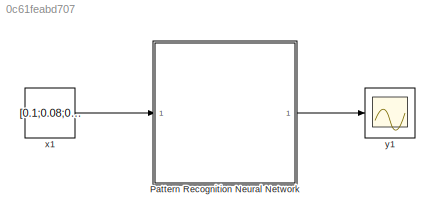
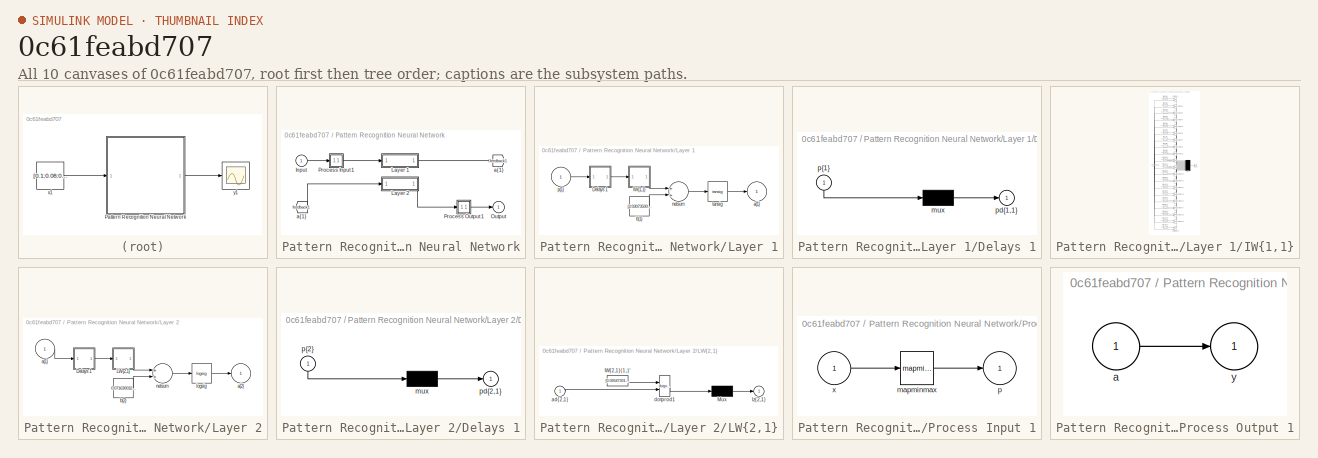
[diagram: thumbnail index - all 10 canvases of the model, root first then tree order]
MODEL slx_0c61feabd707
KIND model
CONFIG AbsTol = auto
CONFIG FixedStep = auto
CONFIG MaxStep = auto
CONFIG MinStep = auto
CONFIG RelTol = 1e-3
CONFIG SampleTimeConstraint = Unconstrained
CONFIG Solver = VariableStepAuto
CONFIG SolverMode = Auto
CONFIG SolverName = VariableStepAuto
CONFIG StartTime = 0.0
CONFIG StopTime = 10.0
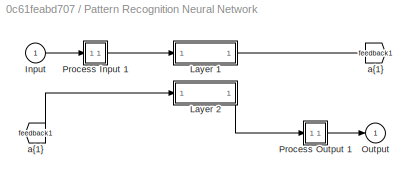
BLOCK [SubSystem] Pattern Recognition Neural Network
  Ports = [1, 1]
  RequestExecContextInheritance = off
  Variant = off
BLOCK [From] Pattern Recognition Neural Network/ a{1} 
  GotoTag = feedback1
BLOCK [Inport] Pattern Recognition Neural Network/Input
  IconDisplay = Port number
  PortDimensions = 8
BLOCK [SubSystem] Pattern Recognition Neural Network/Layer 1
  Ports = [1, 1]
  RequestExecContextInheritance = off
  Variant = off
BLOCK [SubSystem] Pattern Recognition Neural Network/Layer 1/Delays 1
  Ports = [1, 1]
  RequestExecContextInheritance = off
  Variant = off
BLOCK [Mux] Pattern Recognition Neural Network/Layer 1/Delays 1/mux
  Inputs = 1
  Ports = [1, 1]
BLOCK [Outport] Pattern Recognition Neural Network/Layer 1/Delays 1/pd{1,1}
  IconDisplay = Port number
BLOCK [Inport] Pattern Recognition Neural Network/Layer 1/Delays 1/p{1}
  IconDisplay = Port number
  PortDimensions = 8
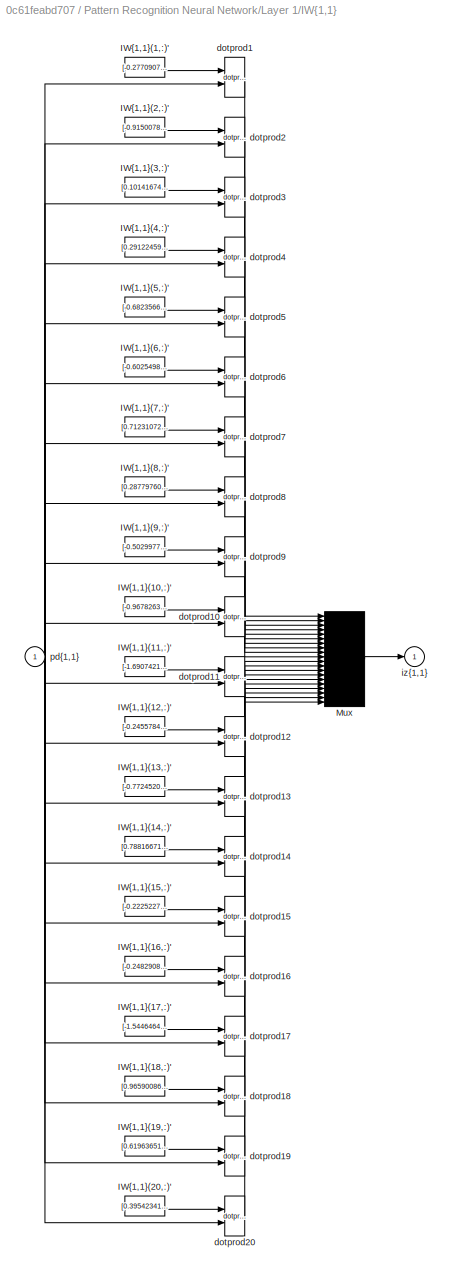
BLOCK [SubSystem] Pattern Recognition Neural Network/Layer 1/IW{1,1}
  Ports = [1, 1]
  RequestExecContextInheritance = off
  Variant = off
BLOCK [Constant] Pattern Recognition Neural Network/Layer 1/IW{1,1}/IW{1,1}(1,:)'
  Value = [-0.27709073859942934259237290461896918714046478271484375;0.97197862684165514668421792521257884800434112548828125;0.9791266970188654550355522587778978049755096435546875;0.50886879313052002515860294806770980358123779296875;0.43524275714367355316625207706238143146038055419921875;-0.69058063739331199126780802544089965522289276123046875;-0.2000116818846180422042380087077617645263671875;-1.096803476653...<+41ch>
BLOCK [Constant] Pattern Recognition Neural Network/Layer 1/IW{1,1}/IW{1,1}(10,:)'
  Value = [-0.96782631258534246310176740735187195241451263427734375;0.2542268270415155573260790333733893930912017822265625;-0.2401794632712489774295505640111514367163181304931640625;-0.77749359835514664229805248396587558090686798095703125;-0.424444679027002391702438899301341734826564788818359375;1.10681083592898943379623233340680599212646484375;-0.38267211008489654400221979813068173825740814208984375;0.7463...<+50ch>
BLOCK [Constant] Pattern Recognition Neural Network/Layer 1/IW{1,1}/IW{1,1}(11,:)'
  Value = [-1.6907421776177518069061989081092178821563720703125;-1.06371550644744417013498605228960514068603515625;0.0204859089586518390568858904998705838806927204132080078125;-0.55140930035369828399183234068914316594600677490234375;-0.49553338557553094911867219707346521317958831787109375;-0.25513561185373567763434721200610511004924774169921875;0.58920534157275594733249590717605315148830413818359375;0.66466...<+47ch>
BLOCK [Constant] Pattern Recognition Neural Network/Layer 1/IW{1,1}/IW{1,1}(12,:)'
  Value = [-0.2455784121673193209911545409340760670602321624755859375;0.447479114141642486668359879331546835601329803466796875;-1.3830412842504953285782676175585947930812835693359375;0.1222786976106245704354336112373857758939266204833984375;0.895549558101813136801183645729906857013702392578125;0.2475084833076153234543426151503808796405792236328125;-0.52752545457112631765994592569768428802490234375;-0.237977...<+49ch>
BLOCK [Constant] Pattern Recognition Neural Network/Layer 1/IW{1,1}/IW{1,1}(13,:)'
  Value = [-0.7724520613462748652722211772925220429897308349609375;0.2117665554102561575877672339629498310387134552001953125;0.1346747262701201430790121094105415977537631988525390625;-0.84702146069131811767505269017419777810573577880859375;-0.85608836770691676409938963843160308897495269775390625;0.64437736077242113719165672591770999133586883544921875;-0.48332814929649503543629407431581057608127593994140625;...<+55ch>
BLOCK [Constant] Pattern Recognition Neural Network/Layer 1/IW{1,1}/IW{1,1}(14,:)'
  Value = [0.78816671862627341038631811898085288703441619873046875;-0.502737353146263554748429669416509568691253662109375;0.23499561125984824716539378641755320131778717041015625;0.88019117730502738350395475208642892539501190185546875;-0.0115842722621357641088479795143939554691314697265625;1.183148579129216226846210702206008136272430419921875;0.63870868013972170729175559245049953460693359375;1.04223049119039...<+38ch>
BLOCK [Constant] Pattern Recognition Neural Network/Layer 1/IW{1,1}/IW{1,1}(15,:)'
  Value = [-0.2225227945971733622965160748208290897309780120849609375;0.056021705788292970595865227778631378896534442901611328125;1.0218484991455378807501119808875955641269683837890625;0.805239006315890737397467091795988380908966064453125;1.0211751567850184674313140931189991533756256103515625;0.62061942076948384272583325582672841846942901611328125;-0.7341273849693747965972079327912069857120513916015625;-0.7...<+52ch>
BLOCK [Constant] Pattern Recognition Neural Network/Layer 1/IW{1,1}/IW{1,1}(16,:)'
  Value = [-0.248290837706262923489930471987463533878326416015625;0.585418832475634420831056559109129011631011962890625;-1.11781673869110864671938543324358761310577392578125;-1.0791089301709118064565018357825465500354766845703125;-0.76973460476787558537381528367404825985431671142578125;-1.20869549531821807164533311151899397373199462890625;0.10443896620270633202043342180331819690763950347900390625;0.20013635...<+48ch>
BLOCK [Constant] Pattern Recognition Neural Network/Layer 1/IW{1,1}/IW{1,1}(17,:)'
  Value = [-1.544646482015691990596906180144287645816802978515625;-0.75212806829694789367835028315312229096889495849609375;-0.5869232384441465111279967459267936646938323974609375;-1.1030722712979759148055336481775157153606414794921875;0.440491802610216531821407670577173121273517608642578125;0.5053233521965851959834026274620555341243743896484375;-0.175627063117169746053747303449199534952640533447265625;0.066...<+54ch>
BLOCK [Constant] Pattern Recognition Neural Network/Layer 1/IW{1,1}/IW{1,1}(18,:)'
  Value = [0.965900867339321234084081879700534045696258544921875;0.950841131805594930170855150208808481693267822265625;-0.620151575182660064200490523944608867168426513671875;0.0869295451531368057462856313577503897249698638916015625;-0.57899005901517230920916290415334515273571014404296875;-0.83653140479804199980407020120765082538127899169921875;-0.31352203356225560870740309837856329977512359619140625;-0.8356...<+48ch>
BLOCK [Constant] Pattern Recognition Neural Network/Layer 1/IW{1,1}/IW{1,1}(19,:)'
  Value = [0.61963651857074608653164204952190630137920379638671875;1.36811579179549713813912603654898703098297119140625;-0.7277247912058300016724388115108013153076171875;1.21793176792539536990034321206621825695037841796875;0.23544228639861819463163783439085818827152252197265625;1.2252245724014141359248242224566638469696044921875;0.26676726297351149863601449396810494363307952880859375;0.427097591269646192913...<+32ch>
BLOCK [Constant] Pattern Recognition Neural Network/Layer 1/IW{1,1}/IW{1,1}(2,:)'
  Value = [-0.91500784294227577309044363573775626718997955322265625;1.047614626609001842183488406590186059474945068359375;0.0441363496173483582651897449977695941925048828125;0.35769461630308085897667069730232469737529754638671875;1.168850566665152523881943125161342322826385498046875;-0.77084223441007448940354152000509202480316162109375;0.530767049869760310087940524681471288204193115234375;-0.001375379346211...<+43ch>
BLOCK [Constant] Pattern Recognition Neural Network/Layer 1/IW{1,1}/IW{1,1}(20,:)'
  Value = [0.39542341039965822613311274835723452270030975341796875;-1.417192993595647987348229435156099498271942138671875;-0.003147659222429520682606796100344581645913422107696533203125;-0.13355034589422121182877845058101229369640350341796875;-0.9322966691616105805451297783292829990386962890625;-0.419977376763925269731458911337540484964847564697265625;0.79060703436863344339968762142234481871128082275390625;...<+55ch>
BLOCK [Constant] Pattern Recognition Neural Network/Layer 1/IW{1,1}/IW{1,1}(3,:)'
  Value = [0.10141674284573710951296021676171221770346164703369140625;-0.227571703580415840573181185391149483621120452880859375;-0.481402182342836215678261169159668497741222381591796875;0.217220700959143198094380977636319585144519805908203125;0.8204560928733959368486239327467046678066253662109375;0.7534921673061152347372626536525785923004150390625;1.16649635798886830428955363458953797817230224609375;1.10635...<+48ch>
BLOCK [Constant] Pattern Recognition Neural Network/Layer 1/IW{1,1}/IW{1,1}(4,:)'
  Value = [0.291224597421211817138697597329155541956424713134765625;-1.338394962625292006208610473549924790859222412109375;-1.1006314194362307734564865313586778938770294189453125;-0.2836716040418114648247183140483684837818145751953125;0.32553726174709296525833224222878925502300262451171875;0.5222932487077314167578379056067205965518951416015625;0.58753331824567334162878751158132217824459075927734375;0.848715...<+47ch>
BLOCK [Constant] Pattern Recognition Neural Network/Layer 1/IW{1,1}/IW{1,1}(5,:)'
  Value = [-0.6823566110308174614829113124869763851165771484375;0.1833258798199293437836132625307072885334491729736328125;-1.114859264980118336296754932845942676067352294921875;0.96635746320754467575397939071990549564361572265625;0.040779494006264661865035492382958182133734226226806640625;0.44538865914024017289563062149682082235813140869140625;-0.6594242103752634420743561349809169769287109375;-1.19307561378...<+41ch>
BLOCK [Constant] Pattern Recognition Neural Network/Layer 1/IW{1,1}/IW{1,1}(6,:)'
  Value = [-0.60254982595603878703371947267442010343074798583984375;0.56145518916207570736531806687708012759685516357421875;0.176327745859613915779817716611432842910289764404296875;0.7916502527608162420591497721034102141857147216796875;-0.5383859758535809447721476317383348941802978515625;0.80073254747495692384973153821192681789398193359375;0.72408235700654099975537292266380973160266876220703125;-1.094669604...<+38ch>
BLOCK [Constant] Pattern Recognition Neural Network/Layer 1/IW{1,1}/IW{1,1}(7,:)'
  Value = [0.71231072968334718797933646783349104225635528564453125;-0.58643459175066670052700601445394568145275115966796875;1.0357878455700142428241861125570721924304962158203125;0.285116068612064565979125063677201978862285614013671875;0.09001400427112755953107381401423481293022632598876953125;0.434418085100904238782248967254417948424816131591796875;-0.8338384856463922911729014231241308152675628662109375;-1...<+54ch>
BLOCK [Constant] Pattern Recognition Neural Network/Layer 1/IW{1,1}/IW{1,1}(8,:)'
  Value = [0.287797603408559143911560340711730532348155975341796875;-0.8534248825427883655692085085320286452770233154296875;-0.80619886579233479562134334628353826701641082763671875;0.8813519026297151892634929026826284825801849365234375;-0.98154992858990597337509598219185136258602142333984375;0.70044412970098168802479676742223091423511505126953125;-0.0738503104845300295533405687820049934089183807373046875;-0...<+55ch>
BLOCK [Constant] Pattern Recognition Neural Network/Layer 1/IW{1,1}/IW{1,1}(9,:)'
  Value = [-0.502997744771172872191300484701059758663177490234375;-0.5217589786104692706203422858379781246185302734375;0.288413872424194750454518043625284917652606964111328125;-0.57687339685168559366701401813770644366741180419921875;-1.33036524649442267076437929063104093074798583984375;-1.019550292244070899272401220514439046382904052734375;1.128136188969184328101391656673513352870941162109375;0.255769968803...<+43ch>
BLOCK [Mux] Pattern Recognition Neural Network/Layer 1/IW{1,1}/Mux
  Inputs = 20
  Ports = [20, 1]
BLOCK [Reference] Pattern Recognition Neural Network/Layer 1/IW{1,1}/dotprod1  REF=neural/Weight Functions/dotprod
  Ports = [2, 1]
  SourceBlock = neural/Weight Functions/dotprod
  SourceType = DOTPROD
BLOCK [Reference] Pattern Recognition Neural Network/Layer 1/IW{1,1}/dotprod10  REF=neural/Weight Functions/dotprod
  Ports = [2, 1]
  SourceBlock = neural/Weight Functions/dotprod
  SourceType = DOTPROD
BLOCK [Reference] Pattern Recognition Neural Network/Layer 1/IW{1,1}/dotprod11  REF=neural/Weight Functions/dotprod
  Ports = [2, 1]
  SourceBlock = neural/Weight Functions/dotprod
  SourceType = DOTPROD
BLOCK [Reference] Pattern Recognition Neural Network/Layer 1/IW{1,1}/dotprod12  REF=neural/Weight Functions/dotprod
  Ports = [2, 1]
  SourceBlock = neural/Weight Functions/dotprod
  SourceType = DOTPROD
BLOCK [Reference] Pattern Recognition Neural Network/Layer 1/IW{1,1}/dotprod13  REF=neural/Weight Functions/dotprod
  Ports = [2, 1]
  SourceBlock = neural/Weight Functions/dotprod
  SourceType = DOTPROD
BLOCK [Reference] Pattern Recognition Neural Network/Layer 1/IW{1,1}/dotprod14  REF=neural/Weight Functions/dotprod
  Ports = [2, 1]
  SourceBlock = neural/Weight Functions/dotprod
  SourceType = DOTPROD
BLOCK [Reference] Pattern Recognition Neural Network/Layer 1/IW{1,1}/dotprod15  REF=neural/Weight Functions/dotprod
  Ports = [2, 1]
  SourceBlock = neural/Weight Functions/dotprod
  SourceType = DOTPROD
BLOCK [Reference] Pattern Recognition Neural Network/Layer 1/IW{1,1}/dotprod16  REF=neural/Weight Functions/dotprod
  Ports = [2, 1]
  SourceBlock = neural/Weight Functions/dotprod
  SourceType = DOTPROD
BLOCK [Reference] Pattern Recognition Neural Network/Layer 1/IW{1,1}/dotprod17  REF=neural/Weight Functions/dotprod
  Ports = [2, 1]
  SourceBlock = neural/Weight Functions/dotprod
  SourceType = DOTPROD
BLOCK [Reference] Pattern Recognition Neural Network/Layer 1/IW{1,1}/dotprod18  REF=neural/Weight Functions/dotprod
  Ports = [2, 1]
  SourceBlock = neural/Weight Functions/dotprod
  SourceType = DOTPROD
BLOCK [Reference] Pattern Recognition Neural Network/Layer 1/IW{1,1}/dotprod19  REF=neural/Weight Functions/dotprod
  Ports = [2, 1]
  SourceBlock = neural/Weight Functions/dotprod
  SourceType = DOTPROD
BLOCK [Reference] Pattern Recognition Neural Network/Layer 1/IW{1,1}/dotprod2  REF=neural/Weight Functions/dotprod
  Ports = [2, 1]
  SourceBlock = neural/Weight Functions/dotprod
  SourceType = DOTPROD
BLOCK [Reference] Pattern Recognition Neural Network/Layer 1/IW{1,1}/dotprod20  REF=neural/Weight Functions/dotprod
  Ports = [2, 1]
  SourceBlock = neural/Weight Functions/dotprod
  SourceType = DOTPROD
BLOCK [Reference] Pattern Recognition Neural Network/Layer 1/IW{1,1}/dotprod3  REF=neural/Weight Functions/dotprod
  Ports = [2, 1]
  SourceBlock = neural/Weight Functions/dotprod
  SourceType = DOTPROD
BLOCK [Reference] Pattern Recognition Neural Network/Layer 1/IW{1,1}/dotprod4  REF=neural/Weight Functions/dotprod
  Ports = [2, 1]
  SourceBlock = neural/Weight Functions/dotprod
  SourceType = DOTPROD
BLOCK [Reference] Pattern Recognition Neural Network/Layer 1/IW{1,1}/dotprod5  REF=neural/Weight Functions/dotprod
  Ports = [2, 1]
  SourceBlock = neural/Weight Functions/dotprod
  SourceType = DOTPROD
BLOCK [Reference] Pattern Recognition Neural Network/Layer 1/IW{1,1}/dotprod6  REF=neural/Weight Functions/dotprod
  Ports = [2, 1]
  SourceBlock = neural/Weight Functions/dotprod
  SourceType = DOTPROD
BLOCK [Reference] Pattern Recognition Neural Network/Layer 1/IW{1,1}/dotprod7  REF=neural/Weight Functions/dotprod
  Ports = [2, 1]
  SourceBlock = neural/Weight Functions/dotprod
  SourceType = DOTPROD
BLOCK [Reference] Pattern Recognition Neural Network/Layer 1/IW{1,1}/dotprod8  REF=neural/Weight Functions/dotprod
  Ports = [2, 1]
  SourceBlock = neural/Weight Functions/dotprod
  SourceType = DOTPROD
BLOCK [Reference] Pattern Recognition Neural Network/Layer 1/IW{1,1}/dotprod9  REF=neural/Weight Functions/dotprod
  Ports = [2, 1]
  SourceBlock = neural/Weight Functions/dotprod
  SourceType = DOTPROD
BLOCK [Outport] Pattern Recognition Neural Network/Layer 1/IW{1,1}/iz{1,1}
  IconDisplay = Port number
BLOCK [Inport] Pattern Recognition Neural Network/Layer 1/IW{1,1}/pd{1,1}
  IconDisplay = Port number
  PortDimensions = 8
BLOCK [Outport] Pattern Recognition Neural Network/Layer 1/a{1}
  IconDisplay = Port number
  InitialOutput = [0;0;0;0;0;0;0;0;0;0;0;0;0;0;0;0;0;0;0;0]
BLOCK [Constant] Pattern Recognition Neural Network/Layer 1/b{1}
  Value = [2.030735006086622274068531623925082385540008544921875;1.7932657928901878374716716280090622603893280029296875;-1.581844000790346260743035600171424448490142822265625;-1.3481868741509923648180802047136239707469940185546875;1.1893979383890129764012044688570313155651092529296875;1.013727023783366210096801296458579599857330322265625;-0.73802729631493679818277087179012596607208251953125;-0.4052839761505...<+706ch>
BLOCK [Sum] Pattern Recognition Neural Network/Layer 1/netsum
  Inputs = 2
  Ports = [2, 1]
BLOCK [Inport] Pattern Recognition Neural Network/Layer 1/p{1}
  IconDisplay = Port number
  PortDimensions = 8
BLOCK [Reference] Pattern Recognition Neural Network/Layer 1/tansig  REF=neural/Transfer Functions/tansig
  Ports = [1, 1]
  SourceBlock = neural/Transfer Functions/tansig
  SourceType = TANSIG
BLOCK [SubSystem] Pattern Recognition Neural Network/Layer 2
  Ports = [1, 1]
  RequestExecContextInheritance = off
  Variant = off
BLOCK [SubSystem] Pattern Recognition Neural Network/Layer 2/Delays 1
  Ports = [1, 1]
  RequestExecContextInheritance = off
  Variant = off
BLOCK [Mux] Pattern Recognition Neural Network/Layer 2/Delays 1/mux
  Inputs = 1
  Ports = [1, 1]
BLOCK [Outport] Pattern Recognition Neural Network/Layer 2/Delays 1/pd{2,1}
  IconDisplay = Port number
BLOCK [Inport] Pattern Recognition Neural Network/Layer 2/Delays 1/p{2}
  IconDisplay = Port number
  PortDimensions = 20
BLOCK [SubSystem] Pattern Recognition Neural Network/Layer 2/LW{2,1}
  Ports = [1, 1]
  RequestExecContextInheritance = off
  Variant = off
BLOCK [Constant] Pattern Recognition Neural Network/Layer 2/LW{2,1}/IW{2,1}(1,:)'
  Value = [0.0958730104020222573257825615655747242271900177001953125;-0.52996823006410931355958382482640445232391357421875;0.1367082626520752797194546701575745828449726104736328125;-0.6570833193324172594174115147325210273265838623046875;-0.8904253527283068070374838498537428677082061767578125;-0.1502418751058645363105625847310875542461872100830078125;0.3042642479481070250102447971585206687450408935546875;-0....<+727ch>
BLOCK [Mux] Pattern Recognition Neural Network/Layer 2/LW{2,1}/Mux
  Inputs = 1
  Ports = [1, 1]
BLOCK [Inport] Pattern Recognition Neural Network/Layer 2/LW{2,1}/ad{2,1}
  IconDisplay = Port number
  PortDimensions = 20
BLOCK [Reference] Pattern Recognition Neural Network/Layer 2/LW{2,1}/dotprod1  REF=neural/Weight Functions/dotprod
  Ports = [2, 1]
  SourceBlock = neural/Weight Functions/dotprod
  SourceType = DOTPROD
BLOCK [Outport] Pattern Recognition Neural Network/Layer 2/LW{2,1}/lz{2,1}
  IconDisplay = Port number
BLOCK [Inport] Pattern Recognition Neural Network/Layer 2/a{1} 
  IconDisplay = Port number
  PortDimensions = 20
BLOCK [Outport] Pattern Recognition Neural Network/Layer 2/a{2}
  IconDisplay = Port number
  InitialOutput = 0
BLOCK [Constant] Pattern Recognition Neural Network/Layer 2/b{2}
  Value = 0.071630032507358720739176760616828687489032745361328125
BLOCK [Reference] Pattern Recognition Neural Network/Layer 2/logsig  REF=neural/Transfer Functions/logsig
  Ports = [1, 1]
  SourceBlock = neural/Transfer Functions/logsig
  SourceType = LOGSIG
BLOCK [Sum] Pattern Recognition Neural Network/Layer 2/netsum
  Inputs = 2
  Ports = [2, 1]
BLOCK [Outport] Pattern Recognition Neural Network/Output
  IconDisplay = Port number
  InitialOutput = 0
BLOCK [SubSystem] Pattern Recognition Neural Network/Process Input 1
  Ports = [1, 1]
  RequestExecContextInheritance = off
  Variant = off
BLOCK [Reference] Pattern Recognition Neural Network/Process Input 1/mapminmax  REF=neural/Processing Functions/mapminmax
  Ports = [1, 1]
  SourceBlock = neural/Processing Functions/mapminmax
  SourceType = MAPMINMAX Preprocess
BLOCK [Outport] Pattern Recognition Neural Network/Process Input 1/p
  IconDisplay = Port number
  PortDimensions = 8
BLOCK [Inport] Pattern Recognition Neural Network/Process Input 1/x
  IconDisplay = Port number
  PortDimensions = 8
BLOCK [SubSystem] Pattern Recognition Neural Network/Process Output 1
  Ports = [1, 1]
  RequestExecContextInheritance = off
  Variant = off
BLOCK [Inport] Pattern Recognition Neural Network/Process Output 1/a
  IconDisplay = Port number
  PortDimensions = 1
BLOCK [Outport] Pattern Recognition Neural Network/Process Output 1/y
  IconDisplay = Port number
  PortDimensions = 1
BLOCK [Goto] Pattern Recognition Neural Network/a{1}
  GotoTag = feedback1
BLOCK [Constant] x1
  SampleTime = 1
  Value = [0.1;0.08;0.77;0.49;0.66;0.75;0.89;0.49]
BLOCK [Scope] y1
  Ports = [1]
LINE Pattern Recognition Neural Network/ a{1} :1 -> Pattern Recognition Neural Network/Layer 2:1
LINE Pattern Recognition Neural Network/Input:1 -> Pattern Recognition Neural Network/Process Input 1:1
LINE Pattern Recognition Neural Network/Layer 1/Delays 1/mux:1 -> Pattern Recognition Neural Network/Layer 1/Delays 1/pd{1,1}:1
LINE Pattern Recognition Neural Network/Layer 1/Delays 1/p{1}:1 -> Pattern Recognition Neural Network/Layer 1/Delays 1/mux:1
LINE Pattern Recognition Neural Network/Layer 1/Delays 1:1 -> Pattern Recognition Neural Network/Layer 1/IW{1,1}:1
LINE Pattern Recognition Neural Network/Layer 1/IW{1,1}/IW{1,1}(1,:)':1 -> Pattern Recognition Neural Network/Layer 1/IW{1,1}/dotprod1:1
LINE Pattern Recognition Neural Network/Layer 1/IW{1,1}/IW{1,1}(10,:)':1 -> Pattern Recognition Neural Network/Layer 1/IW{1,1}/dotprod10:1
LINE Pattern Recognition Neural Network/Layer 1/IW{1,1}/IW{1,1}(11,:)':1 -> Pattern Recognition Neural Network/Layer 1/IW{1,1}/dotprod11:1
LINE Pattern Recognition Neural Network/Layer 1/IW{1,1}/IW{1,1}(12,:)':1 -> Pattern Recognition Neural Network/Layer 1/IW{1,1}/dotprod12:1
LINE Pattern Recognition Neural Network/Layer 1/IW{1,1}/IW{1,1}(13,:)':1 -> Pattern Recognition Neural Network/Layer 1/IW{1,1}/dotprod13:1
LINE Pattern Recognition Neural Network/Layer 1/IW{1,1}/IW{1,1}(14,:)':1 -> Pattern Recognition Neural Network/Layer 1/IW{1,1}/dotprod14:1
LINE Pattern Recognition Neural Network/Layer 1/IW{1,1}/IW{1,1}(15,:)':1 -> Pattern Recognition Neural Network/Layer 1/IW{1,1}/dotprod15:1
LINE Pattern Recognition Neural Network/Layer 1/IW{1,1}/IW{1,1}(16,:)':1 -> Pattern Recognition Neural Network/Layer 1/IW{1,1}/dotprod16:1
LINE Pattern Recognition Neural Network/Layer 1/IW{1,1}/IW{1,1}(17,:)':1 -> Pattern Recognition Neural Network/Layer 1/IW{1,1}/dotprod17:1
LINE Pattern Recognition Neural Network/Layer 1/IW{1,1}/IW{1,1}(18,:)':1 -> Pattern Recognition Neural Network/Layer 1/IW{1,1}/dotprod18:1
LINE Pattern Recognition Neural Network/Layer 1/IW{1,1}/IW{1,1}(19,:)':1 -> Pattern Recognition Neural Network/Layer 1/IW{1,1}/dotprod19:1
LINE Pattern Recognition Neural Network/Layer 1/IW{1,1}/IW{1,1}(2,:)':1 -> Pattern Recognition Neural Network/Layer 1/IW{1,1}/dotprod2:1
LINE Pattern Recognition Neural Network/Layer 1/IW{1,1}/IW{1,1}(20,:)':1 -> Pattern Recognition Neural Network/Layer 1/IW{1,1}/dotprod20:1
LINE Pattern Recognition Neural Network/Layer 1/IW{1,1}/IW{1,1}(3,:)':1 -> Pattern Recognition Neural Network/Layer 1/IW{1,1}/dotprod3:1
LINE Pattern Recognition Neural Network/Layer 1/IW{1,1}/IW{1,1}(4,:)':1 -> Pattern Recognition Neural Network/Layer 1/IW{1,1}/dotprod4:1
LINE Pattern Recognition Neural Network/Layer 1/IW{1,1}/IW{1,1}(5,:)':1 -> Pattern Recognition Neural Network/Layer 1/IW{1,1}/dotprod5:1
LINE Pattern Recognition Neural Network/Layer 1/IW{1,1}/IW{1,1}(6,:)':1 -> Pattern Recognition Neural Network/Layer 1/IW{1,1}/dotprod6:1
LINE Pattern Recognition Neural Network/Layer 1/IW{1,1}/IW{1,1}(7,:)':1 -> Pattern Recognition Neural Network/Layer 1/IW{1,1}/dotprod7:1
LINE Pattern Recognition Neural Network/Layer 1/IW{1,1}/IW{1,1}(8,:)':1 -> Pattern Recognition Neural Network/Layer 1/IW{1,1}/dotprod8:1
LINE Pattern Recognition Neural Network/Layer 1/IW{1,1}/IW{1,1}(9,:)':1 -> Pattern Recognition Neural Network/Layer 1/IW{1,1}/dotprod9:1
LINE Pattern Recognition Neural Network/Layer 1/IW{1,1}/Mux:1 -> Pattern Recognition Neural Network/Layer 1/IW{1,1}/iz{1,1}:1
LINE Pattern Recognition Neural Network/Layer 1/IW{1,1}/dotprod10:1 -> Pattern Recognition Neural Network/Layer 1/IW{1,1}/Mux:10
LINE Pattern Recognition Neural Network/Layer 1/IW{1,1}/dotprod11:1 -> Pattern Recognition Neural Network/Layer 1/IW{1,1}/Mux:11
LINE Pattern Recognition Neural Network/Layer 1/IW{1,1}/dotprod12:1 -> Pattern Recognition Neural Network/Layer 1/IW{1,1}/Mux:12
LINE Pattern Recognition Neural Network/Layer 1/IW{1,1}/dotprod13:1 -> Pattern Recognition Neural Network/Layer 1/IW{1,1}/Mux:13
LINE Pattern Recognition Neural Network/Layer 1/IW{1,1}/dotprod14:1 -> Pattern Recognition Neural Network/Layer 1/IW{1,1}/Mux:14
LINE Pattern Recognition Neural Network/Layer 1/IW{1,1}/dotprod15:1 -> Pattern Recognition Neural Network/Layer 1/IW{1,1}/Mux:15
LINE Pattern Recognition Neural Network/Layer 1/IW{1,1}/dotprod16:1 -> Pattern Recognition Neural Network/Layer 1/IW{1,1}/Mux:16
LINE Pattern Recognition Neural Network/Layer 1/IW{1,1}/dotprod17:1 -> Pattern Recognition Neural Network/Layer 1/IW{1,1}/Mux:17
LINE Pattern Recognition Neural Network/Layer 1/IW{1,1}/dotprod18:1 -> Pattern Recognition Neural Network/Layer 1/IW{1,1}/Mux:18
LINE Pattern Recognition Neural Network/Layer 1/IW{1,1}/dotprod19:1 -> Pattern Recognition Neural Network/Layer 1/IW{1,1}/Mux:19
LINE Pattern Recognition Neural Network/Layer 1/IW{1,1}/dotprod1:1 -> Pattern Recognition Neural Network/Layer 1/IW{1,1}/Mux:1
LINE Pattern Recognition Neural Network/Layer 1/IW{1,1}/dotprod20:1 -> Pattern Recognition Neural Network/Layer 1/IW{1,1}/Mux:20
LINE Pattern Recognition Neural Network/Layer 1/IW{1,1}/dotprod2:1 -> Pattern Recognition Neural Network/Layer 1/IW{1,1}/Mux:2
LINE Pattern Recognition Neural Network/Layer 1/IW{1,1}/dotprod3:1 -> Pattern Recognition Neural Network/Layer 1/IW{1,1}/Mux:3
LINE Pattern Recognition Neural Network/Layer 1/IW{1,1}/dotprod4:1 -> Pattern Recognition Neural Network/Layer 1/IW{1,1}/Mux:4
LINE Pattern Recognition Neural Network/Layer 1/IW{1,1}/dotprod5:1 -> Pattern Recognition Neural Network/Layer 1/IW{1,1}/Mux:5
LINE Pattern Recognition Neural Network/Layer 1/IW{1,1}/dotprod6:1 -> Pattern Recognition Neural Network/Layer 1/IW{1,1}/Mux:6
LINE Pattern Recognition Neural Network/Layer 1/IW{1,1}/dotprod7:1 -> Pattern Recognition Neural Network/Layer 1/IW{1,1}/Mux:7
LINE Pattern Recognition Neural Network/Layer 1/IW{1,1}/dotprod8:1 -> Pattern Recognition Neural Network/Layer 1/IW{1,1}/Mux:8
LINE Pattern Recognition Neural Network/Layer 1/IW{1,1}/dotprod9:1 -> Pattern Recognition Neural Network/Layer 1/IW{1,1}/Mux:9
NET Pattern Recognition Neural Network/Layer 1/IW{1,1}/pd{1,1}:1 -> Pattern Recognition Neural Network/Layer 1/IW{1,1}/dotprod10:2, Pattern Recognition Neural Network/Layer 1/IW{1,1}/dotprod11:2, Pattern Recognition Neural Network/Layer 1/IW{1,1}/dotprod12:2, Pattern Recognition Neural Network/Layer 1/IW{1,1}/dotprod13:2, Pattern Recognition Neural Network/Layer 1/IW{1,1}/dotprod14:2, Pattern Recognition Neural Network/Layer 1/IW{1,1}/dotprod15:2, Pattern Recognition Neural Network/Layer 1/IW{1,1}/dotprod16:2, Pattern Recognition Neural Network/Layer 1/IW{1,1}/dotprod17:2, Pattern Recognition Neural Network/Layer 1/IW{1,1}/dotprod18:2, Pattern Recognition Neural Network/Layer 1/IW{1,1}/dotprod19:2, Pattern Recognition Neural Network/Layer 1/IW{1,1}/dotprod1:2, Pattern Recognition Neural Network/Layer 1/IW{1,1}/dotprod20:2, Pattern Recognition Neural Network/Layer 1/IW{1,1}/dotprod2:2, Pattern Recognition Neural Network/Layer 1/IW{1,1}/dotprod3:2, Pattern Recognition Neural Network/Layer 1/IW{1,1}/dotprod4:2, Pattern Recognition Neural Network/Layer 1/IW{1,1}/dotprod5:2, Pattern Recognition Neural Network/Layer 1/IW{1,1}/dotprod6:2, Pattern Recognition Neural Network/Layer 1/IW{1,1}/dotprod7:2, Pattern Recognition Neural Network/Layer 1/IW{1,1}/dotprod8:2, Pattern Recognition Neural Network/Layer 1/IW{1,1}/dotprod9:2
LINE Pattern Recognition Neural Network/Layer 1/IW{1,1}:1 -> Pattern Recognition Neural Network/Layer 1/netsum:1
LINE Pattern Recognition Neural Network/Layer 1/b{1}:1 -> Pattern Recognition Neural Network/Layer 1/netsum:2
LINE Pattern Recognition Neural Network/Layer 1/netsum:1 -> Pattern Recognition Neural Network/Layer 1/tansig:1
LINE Pattern Recognition Neural Network/Layer 1/p{1}:1 -> Pattern Recognition Neural Network/Layer 1/Delays 1:1
LINE Pattern Recognition Neural Network/Layer 1/tansig:1 -> Pattern Recognition Neural Network/Layer 1/a{1}:1
LINE Pattern Recognition Neural Network/Layer 1:1 -> Pattern Recognition Neural Network/a{1}:1
LINE Pattern Recognition Neural Network/Layer 2/Delays 1/mux:1 -> Pattern Recognition Neural Network/Layer 2/Delays 1/pd{2,1}:1
LINE Pattern Recognition Neural Network/Layer 2/Delays 1/p{2}:1 -> Pattern Recognition Neural Network/Layer 2/Delays 1/mux:1
LINE Pattern Recognition Neural Network/Layer 2/Delays 1:1 -> Pattern Recognition Neural Network/Layer 2/LW{2,1}:1
LINE Pattern Recognition Neural Network/Layer 2/LW{2,1}/IW{2,1}(1,:)':1 -> Pattern Recognition Neural Network/Layer 2/LW{2,1}/dotprod1:1
LINE Pattern Recognition Neural Network/Layer 2/LW{2,1}/Mux:1 -> Pattern Recognition Neural Network/Layer 2/LW{2,1}/lz{2,1}:1
LINE Pattern Recognition Neural Network/Layer 2/LW{2,1}/ad{2,1}:1 -> Pattern Recognition Neural Network/Layer 2/LW{2,1}/dotprod1:2
LINE Pattern Recognition Neural Network/Layer 2/LW{2,1}/dotprod1:1 -> Pattern Recognition Neural Network/Layer 2/LW{2,1}/Mux:1
LINE Pattern Recognition Neural Network/Layer 2/LW{2,1}:1 -> Pattern Recognition Neural Network/Layer 2/netsum:1
LINE Pattern Recognition Neural Network/Layer 2/a{1} :1 -> Pattern Recognition Neural Network/Layer 2/Delays 1:1
LINE Pattern Recognition Neural Network/Layer 2/b{2}:1 -> Pattern Recognition Neural Network/Layer 2/netsum:2
LINE Pattern Recognition Neural Network/Layer 2/logsig:1 -> Pattern Recognition Neural Network/Layer 2/a{2}:1
LINE Pattern Recognition Neural Network/Layer 2/netsum:1 -> Pattern Recognition Neural Network/Layer 2/logsig:1
LINE Pattern Recognition Neural Network/Layer 2:1 -> Pattern Recognition Neural Network/Process Output 1:1
LINE Pattern Recognition Neural Network/Process Input 1/mapminmax:1 -> Pattern Recognition Neural Network/Process Input 1/p:1
LINE Pattern Recognition Neural Network/Process Input 1/x:1 -> Pattern Recognition Neural Network/Process Input 1/mapminmax:1
LINE Pattern Recognition Neural Network/Process Input 1:1 -> Pattern Recognition Neural Network/Layer 1:1
LINE Pattern Recognition Neural Network/Process Output 1/a:1 -> Pattern Recognition Neural Network/Process Output 1/y:1
LINE Pattern Recognition Neural Network/Process Output 1:1 -> Pattern Recognition Neural Network/Output:1
LINE Pattern Recognition Neural Network:1 -> y1:1
LINE x1:1 -> Pattern Recognition Neural Network:1
note: NET lines group one-source signal fan-out (src -> all destinations, sorted); 1:1 wires keep LINE
